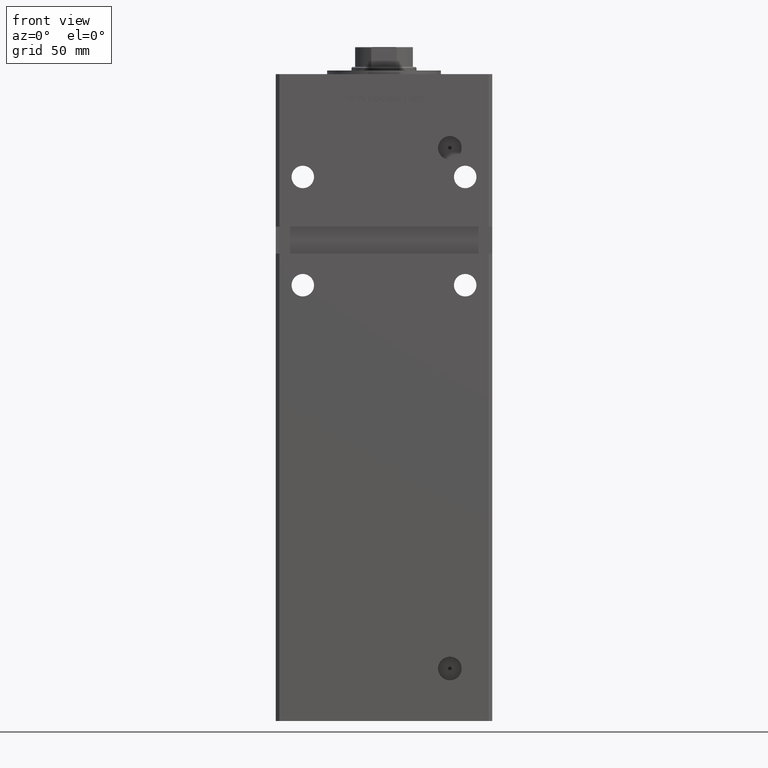
[diagram: clean part render]
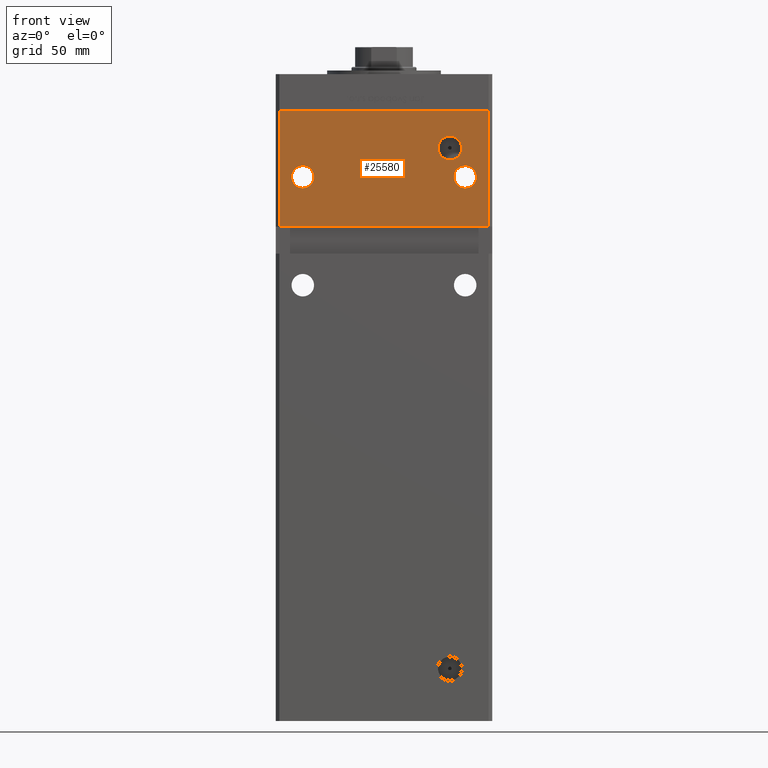
[diagram: same view with one face highlighted and labeled with its STEP entity id]
A machine part, front view. The second image highlights one B-rep face of the part: STEP entity #25580.
In plain terms, the highlighted planar face has unit normal (0, 1, 0).
Its self-contained STEP definition (entity closure, byte-faithful):
#802 = ORIENTED_EDGE ( 'NONE', *, *, #26849, .T. ) ;
#1439 = AXIS2_PLACEMENT_3D ( 'NONE', #38607, #13968, #17983 ) ;
#1524 = CARTESIAN_POINT ( 'NONE',  ( -45.00000000000000000, -50.99999999999999289, 275.2500000000000000 ) ) ;
#1587 = CARTESIAN_POINT ( 'NONE',  ( -57.99999999999997868, -50.99999999999999289, 318.5000000000000000 ) ) ;
#1702 = LINE ( 'NONE', #10023, #36250 ) ;
#2503 = DIRECTION ( 'NONE',  ( -0.000000000000000000, -0.000000000000000000, -1.000000000000000000 ) ) ;
#3197 = CARTESIAN_POINT ( 'NONE',  ( 36.49999999999995737, -50.99999999999999289, 290.9200000000000159 ) ) ;
#4675 = CARTESIAN_POINT ( 'NONE',  ( 57.99999999999997868, -50.99999999999999289, 254.0000000000000568 ) ) ;
#6401 = ORIENTED_EDGE ( 'NONE', *, *, #29510, .F. ) ;
#7983 = EDGE_LOOP ( 'NONE', ( #31876, #33994 ) ) ;
#8090 = DIRECTION ( 'NONE',  ( 0.000000000000000000, 1.000000000000000000, 0.000000000000000000 ) ) ;
#8263 = AXIS2_PLACEMENT_3D ( 'NONE', #1587, #34018, #13649 ) ;
#8849 = CIRCLE ( 'NONE', #38777, 6.249999999999977796 ) ;
#9117 = FACE_OUTER_BOUND ( 'NONE', #20480, .T. ) ;
#9256 = ORIENTED_EDGE ( 'NONE', *, *, #34710, .F. ) ;
#10023 = CARTESIAN_POINT ( 'NONE',  ( -57.99999999999997868, -50.99999999999999289, 318.5000000000000000 ) ) ;
#10276 = ORIENTED_EDGE ( 'NONE', *, *, #40477, .T. ) ;
#10495 = VERTEX_POINT ( 'NONE', #22714 ) ;
#10788 = AXIS2_PLACEMENT_3D ( 'NONE', #47484, #43986, #31129 ) ;
#10829 = VERTEX_POINT ( 'NONE', #35380 ) ;
#11355 = EDGE_CURVE ( 'NONE', #37816, #50818, #13923, .T. ) ;
#12150 = EDGE_CURVE ( 'NONE', #10495, #30660, #8849, .T. ) ;
#13175 = ORIENTED_EDGE ( 'NONE', *, *, #11355, .T. ) ;
#13232 = CIRCLE ( 'NONE', #40624, 6.249999999999977796 ) ;
#13649 = DIRECTION ( 'NONE',  ( 0.000000000000000000, -0.000000000000000000, 1.000000000000000000 ) ) ;
#13923 = CIRCLE ( 'NONE', #45599, 6.579999999999975202 ) ;
#13968 = DIRECTION ( 'NONE',  ( -0.000000000000000000, 1.000000000000000000, -0.000000000000000000 ) ) ;
#15255 = EDGE_CURVE ( 'NONE', #49926, #16522, #13232, .T. ) ;
#16109 = CIRCLE ( 'NONE', #24671, 6.249999999999977796 ) ;
#16522 = VERTEX_POINT ( 'NONE', #36628 ) ;
#17670 = FACE_BOUND ( 'NONE', #21023, .T. ) ;
#17745 = LINE ( 'NONE', #34612, #20782 ) ;
#17983 = DIRECTION ( 'NONE',  ( 0.000000000000000000, 0.000000000000000000, -1.000000000000000000 ) ) ;
#18299 = CARTESIAN_POINT ( 'NONE',  ( 36.49999999999995737, -50.99999999999999289, 297.5000000000000000 ) ) ;
#18322 = DIRECTION ( 'NONE',  ( 0.000000000000000000, 0.000000000000000000, 1.000000000000000000 ) ) ;
#18851 = DIRECTION ( 'NONE',  ( 0.000000000000000000, 1.000000000000000000, 0.000000000000000000 ) ) ;
#19249 = ORIENTED_EDGE ( 'NONE', *, *, #29587, .T. ) ;
#20322 = CARTESIAN_POINT ( 'NONE',  ( -59.99999999999998579, -50.99999999999999289, 254.0000000000000568 ) ) ;
#20407 = VECTOR ( 'NONE', #49813, 1000.000000000000000 ) ;
#20480 = EDGE_LOOP ( 'NONE', ( #10276, #30174, #6401, #9256 ) ) ;
#20782 = VECTOR ( 'NONE', #42393, 1000.000000000000000 ) ;
#21023 = EDGE_LOOP ( 'NONE', ( #13175, #802 ) ) ;
#21674 = FACE_BOUND ( 'NONE', #22255, .T. ) ;
#22255 = EDGE_LOOP ( 'NONE', ( #19249, #30511 ) ) ;
#22339 = CARTESIAN_POINT ( 'NONE',  ( -45.00000000000000000, -50.99999999999999289, 281.5000000000000000 ) ) ;
#22588 = DIRECTION ( 'NONE',  ( -0.000000000000000000, 1.000000000000000000, -0.000000000000000000 ) ) ;
#22714 = CARTESIAN_POINT ( 'NONE',  ( 45.00000000000000000, -50.99999999999999289, 287.7499999999999432 ) ) ;
#22835 = CIRCLE ( 'NONE', #1439, 6.579999999999975202 ) ;
#24671 = AXIS2_PLACEMENT_3D ( 'NONE', #22339, #18851, #18322 ) ;
#25580 = ADVANCED_FACE ( 'NONE', ( #50388, #21674, #9117, #17670 ), #33230, .F. ) ;
#26370 = LINE ( 'NONE', #42458, #45186 ) ;
#26849 = EDGE_CURVE ( 'NONE', #50818, #37816, #22835, .T. ) ;
#29510 = EDGE_CURVE ( 'NONE', #10829, #36655, #26370, .T. ) ;
#29587 = EDGE_CURVE ( 'NONE', #16522, #49926, #16109, .T. ) ;
#30174 = ORIENTED_EDGE ( 'NONE', *, *, #31151, .F. ) ;
#30511 = ORIENTED_EDGE ( 'NONE', *, *, #15255, .T. ) ;
#30660 = VERTEX_POINT ( 'NONE', #45906 ) ;
#31129 = DIRECTION ( 'NONE',  ( 0.000000000000000000, 0.000000000000000000, 1.000000000000000000 ) ) ;
#31151 = EDGE_CURVE ( 'NONE', #36655, #44383, #33449, .T. ) ;
#31730 = CARTESIAN_POINT ( 'NONE',  ( -57.99999999999997868, -50.99999999999999289, 318.5000000000000000 ) ) ;
#31876 = ORIENTED_EDGE ( 'NONE', *, *, #12150, .T. ) ;
#33006 = CARTESIAN_POINT ( 'NONE',  ( -45.00000000000000000, -50.99999999999999289, 281.5000000000000000 ) ) ;
#33230 = PLANE ( 'NONE',  #8263 ) ;
#33449 = LINE ( 'NONE', #20322, #20407 ) ;
#33994 = ORIENTED_EDGE ( 'NONE', *, *, #46389, .T. ) ;
#34018 = DIRECTION ( 'NONE',  ( 0.000000000000000000, 1.000000000000000000, 0.000000000000000000 ) ) ;
#34612 = CARTESIAN_POINT ( 'NONE',  ( -57.99999999999997868, -50.99999999999999289, 318.5000000000000000 ) ) ;
#34710 = EDGE_CURVE ( 'NONE', #51079, #10829, #17745, .T. ) ;
#35380 = CARTESIAN_POINT ( 'NONE',  ( 57.99999999999997868, -50.99999999999999289, 318.5000000000000000 ) ) ;
#36250 = VECTOR ( 'NONE', #2503, 1000.000000000000000 ) ;
#36628 = CARTESIAN_POINT ( 'NONE',  ( -45.00000000000000000, -50.99999999999999289, 287.7499999999999432 ) ) ;
#36655 = VERTEX_POINT ( 'NONE', #4675 ) ;
#37289 = DIRECTION ( 'NONE',  ( 0.000000000000000000, 0.000000000000000000, 1.000000000000000000 ) ) ;
#37816 = VERTEX_POINT ( 'NONE', #3197 ) ;
#38607 = CARTESIAN_POINT ( 'NONE',  ( 36.49999999999995737, -50.99999999999999289, 297.5000000000000000 ) ) ;
#38687 = DIRECTION ( 'NONE',  ( -0.000000000000000000, -0.000000000000000000, -1.000000000000000000 ) ) ;
#38777 = AXIS2_PLACEMENT_3D ( 'NONE', #48979, #48188, #44692 ) ;
#40159 = CARTESIAN_POINT ( 'NONE',  ( -57.99999999999997868, -50.99999999999999289, 254.0000000000000568 ) ) ;
#40477 = EDGE_CURVE ( 'NONE', #51079, #44383, #1702, .T. ) ;
#40624 = AXIS2_PLACEMENT_3D ( 'NONE', #33006, #8090, #37289 ) ;
#42393 = DIRECTION ( 'NONE',  ( 1.000000000000000000, 0.000000000000000000, 0.000000000000000000 ) ) ;
#42458 = CARTESIAN_POINT ( 'NONE',  ( 57.99999999999997868, -50.99999999999999289, 318.5000000000000000 ) ) ;
#43986 = DIRECTION ( 'NONE',  ( 0.000000000000000000, 1.000000000000000000, 0.000000000000000000 ) ) ;
#44141 = CIRCLE ( 'NONE', #10788, 6.249999999999977796 ) ;
#44383 = VERTEX_POINT ( 'NONE', #40159 ) ;
#44692 = DIRECTION ( 'NONE',  ( 0.000000000000000000, 0.000000000000000000, 1.000000000000000000 ) ) ;
#45186 = VECTOR ( 'NONE', #38687, 1000.000000000000000 ) ;
#45599 = AXIS2_PLACEMENT_3D ( 'NONE', #18299, #22588, #49233 ) ;
#45906 = CARTESIAN_POINT ( 'NONE',  ( 45.00000000000000000, -50.99999999999999289, 275.2500000000000000 ) ) ;
#46389 = EDGE_CURVE ( 'NONE', #30660, #10495, #44141, .T. ) ;
#47484 = CARTESIAN_POINT ( 'NONE',  ( 45.00000000000000000, -50.99999999999999289, 281.5000000000000000 ) ) ;
#48188 = DIRECTION ( 'NONE',  ( 0.000000000000000000, 1.000000000000000000, 0.000000000000000000 ) ) ;
#48979 = CARTESIAN_POINT ( 'NONE',  ( 45.00000000000000000, -50.99999999999999289, 281.5000000000000000 ) ) ;
#49233 = DIRECTION ( 'NONE',  ( 0.000000000000000000, 0.000000000000000000, -1.000000000000000000 ) ) ;
#49813 = DIRECTION ( 'NONE',  ( -1.000000000000000000, -0.000000000000000000, -0.000000000000000000 ) ) ;
#49926 = VERTEX_POINT ( 'NONE', #1524 ) ;
#50388 = FACE_BOUND ( 'NONE', #7983, .T. ) ;
#50818 = VERTEX_POINT ( 'NONE', #51389 ) ;
#51079 = VERTEX_POINT ( 'NONE', #31730 ) ;
#51389 = CARTESIAN_POINT ( 'NONE',  ( 36.49999999999995737, -50.99999999999999289, 304.0799999999999841 ) ) ;